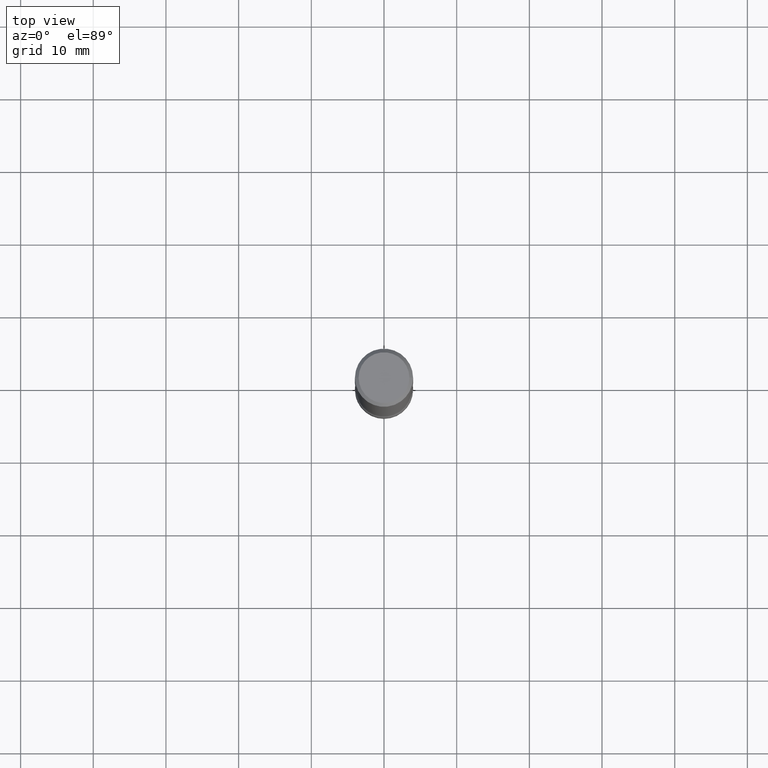
[diagram: clean part render]
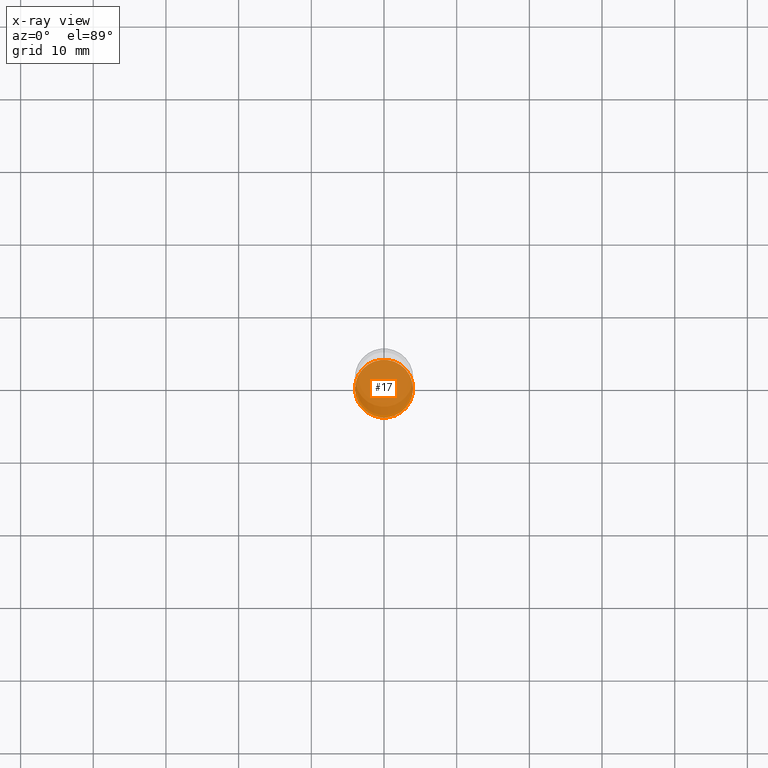
[diagram: x-ray — body ghosted, one internal face saturated and labeled with its STEP entity id]
A machine part, top view, then the same camera in x-ray: the body is ghosted and one INTERNAL B-rep face — a face not visible from any outside direction — is saturated and labeled: STEP entity #17.
In plain terms, the highlighted planar face has unit normal (0, -0, -1).
Its self-contained STEP definition (entity closure, byte-faithful):
#17 = ADVANCED_FACE ( 'NONE', ( #262 ), #85, .T. ) ;
#53 = CARTESIAN_POINT ( 'NONE',  ( -0.1569999999999993345, -1.097908788540677166E-14, -3.464599999999999902 ) ) ;
#78 = EDGE_LOOP ( 'NONE', ( #227, #493 ) ) ;
#85 = PLANE ( 'NONE',  #449 ) ;
#137 = DIRECTION ( 'NONE',  ( -1.000000000000000000, 6.982962677686265922E-15, -4.876176775795935793E-29 ) ) ;
#227 = ORIENTED_EDGE ( 'NONE', *, *, #510, .T. ) ;
#249 = CIRCLE ( 'NONE', #268, 0.1569999999999993345 ) ;
#256 = DIRECTION ( 'NONE',  ( 2.438088387897960049E-29, -3.491481338843145188E-15, -1.000000000000000000 ) ) ;
#258 = CARTESIAN_POINT ( 'NONE',  ( 8.472571225909024784E-29, -1.209658624655596216E-14, -3.464599999999999902 ) ) ;
#260 = CARTESIAN_POINT ( 'NONE',  ( 1.096325140396823951E-15, 0.1569999999999872609, -3.464600000000000346 ) ) ;
#262 = FACE_OUTER_BOUND ( 'NONE', #78, .T. ) ;
#264 = DIRECTION ( 'NONE',  ( 2.445468806185136597E-29, -3.491481338843145583E-15, -1.000000000000000000 ) ) ;
#268 = AXIS2_PLACEMENT_3D ( 'NONE', #258, #264, #558 ) ;
#287 = CIRCLE ( 'NONE', #506, 0.1569999999999993345 ) ;
#314 = DIRECTION ( 'NONE',  ( 2.445468806185136597E-29, -3.491481338843145583E-15, -1.000000000000000000 ) ) ;
#318 = EDGE_CURVE ( 'NONE', #550, #408, #287, .T. ) ;
#408 = VERTEX_POINT ( 'NONE', #495 ) ;
#449 = AXIS2_PLACEMENT_3D ( 'NONE', #260, #256, #137 ) ;
#492 = DIRECTION ( 'NONE',  ( -1.000000000000000000, 6.982962677686269866E-15, 0.000000000000000000 ) ) ;
#493 = ORIENTED_EDGE ( 'NONE', *, *, #318, .T. ) ;
#495 = CARTESIAN_POINT ( 'NONE',  ( 0.1569999999999993345, -1.319355264485483727E-14, -3.464599999999999902 ) ) ;
#506 = AXIS2_PLACEMENT_3D ( 'NONE', #544, #314, #492 ) ;
#510 = EDGE_CURVE ( 'NONE', #408, #550, #249, .T. ) ;
#544 = CARTESIAN_POINT ( 'NONE',  ( 8.472571225909024784E-29, -1.209658624655596216E-14, -3.464599999999999902 ) ) ;
#550 = VERTEX_POINT ( 'NONE', #53 ) ;
#558 = DIRECTION ( 'NONE',  ( -1.000000000000000000, 6.982962677686269866E-15, 0.000000000000000000 ) ) ;